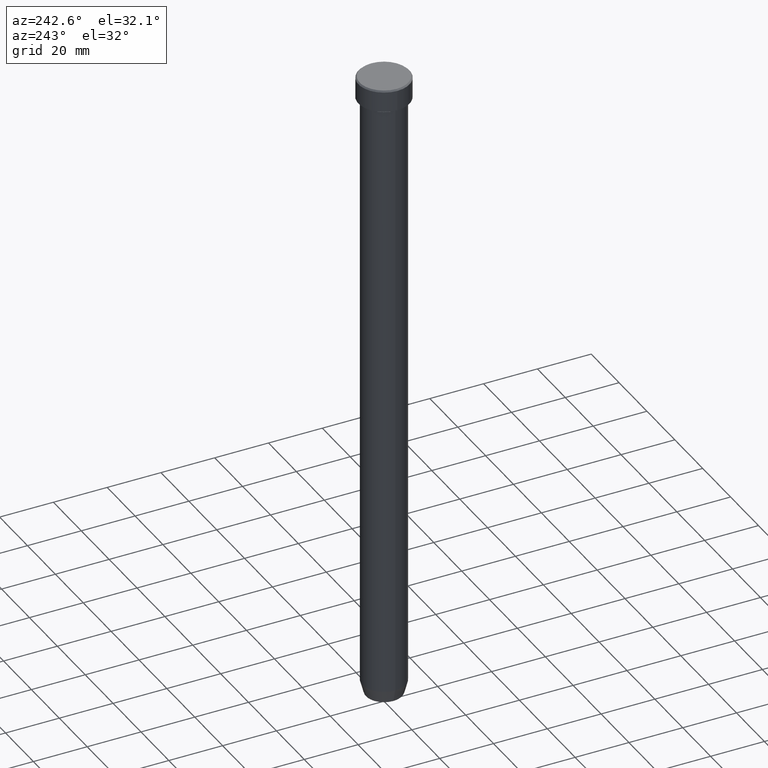
[diagram: clean part render]
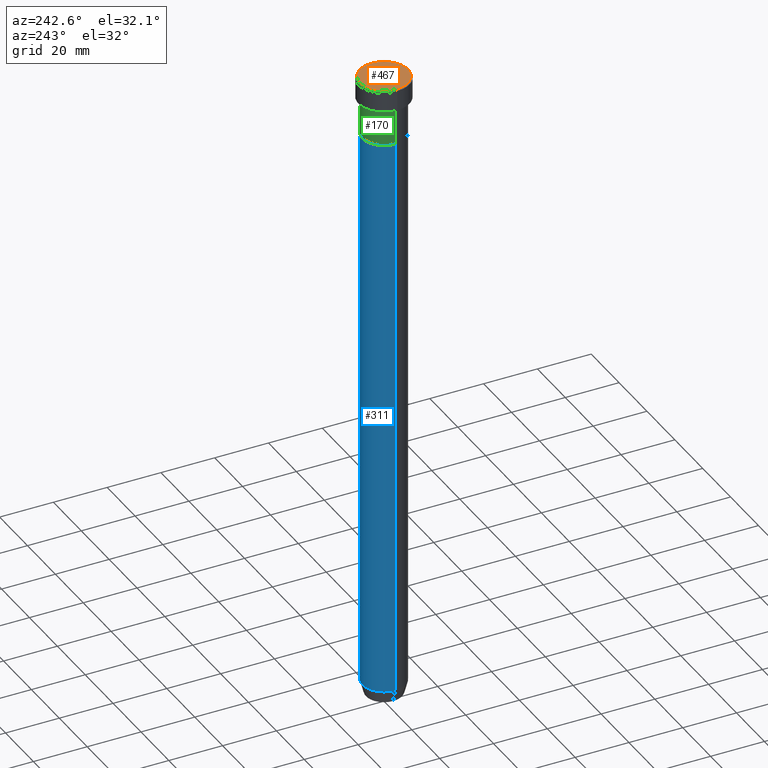
[diagram: same view with three faces highlighted in distinct colors, each labeled with its STEP entity id]
A machine part, auxiliary view with three faces highlighted in distinct colors.
Their STEP definitions:

[orange] entity #467 — the highlighted planar face has unit normal (0, -0, 1).
#13 = CARTESIAN_POINT ( 'NONE',  ( 9.000000000000001776, 1.132798289211301698E-15, 0.000000000000000000 ) ) ;
#88 = ORIENTED_EDGE ( 'NONE', *, *, #274, .T. ) ;
#94 = AXIS2_PLACEMENT_3D ( 'NONE', #352, #538, #265 ) ;
#126 = DIRECTION ( 'NONE',  ( 1.000000000000000000, 0.000000000000000000, 0.000000000000000000 ) ) ;
#190 = VERTEX_POINT ( 'NONE', #13 ) ;
#265 = DIRECTION ( 'NONE',  ( 1.000000000000000000, 0.000000000000000000, 0.000000000000000000 ) ) ;
#268 = DIRECTION ( 'NONE',  ( 1.000000000000000000, 0.000000000000000000, 0.000000000000000000 ) ) ;
#274 = EDGE_CURVE ( 'NONE', #190, #450, #438, .T. ) ;
#291 = AXIS2_PLACEMENT_3D ( 'NONE', #578, #528, #268 ) ;
#293 = EDGE_CURVE ( 'NONE', #450, #190, #553, .T. ) ;
#309 = EDGE_LOOP ( 'NONE', ( #496, #88 ) ) ;
#334 = CARTESIAN_POINT ( 'NONE',  ( -9.000000000000001776, 0.000000000000000000, 0.000000000000000000 ) ) ;
#352 = CARTESIAN_POINT ( 'NONE',  ( 0.000000000000000000, 0.000000000000000000, 0.000000000000000000 ) ) ;
#390 = AXIS2_PLACEMENT_3D ( 'NONE', #487, #526, #126 ) ;
#400 = PLANE ( 'NONE',  #94 ) ;
#438 = CIRCLE ( 'NONE', #390, 9.000000000000001776 ) ;
#450 = VERTEX_POINT ( 'NONE', #334 ) ;
#467 = ADVANCED_FACE ( 'NONE', ( #486 ), #400, .T. ) ;
#486 = FACE_OUTER_BOUND ( 'NONE', #309, .T. ) ;
#487 = CARTESIAN_POINT ( 'NONE',  ( 0.000000000000000000, 0.000000000000000000, 0.000000000000000000 ) ) ;
#496 = ORIENTED_EDGE ( 'NONE', *, *, #293, .T. ) ;
#526 = DIRECTION ( 'NONE',  ( -0.000000000000000000, -0.000000000000000000, 1.000000000000000000 ) ) ;
#528 = DIRECTION ( 'NONE',  ( -0.000000000000000000, -0.000000000000000000, 1.000000000000000000 ) ) ;
#538 = DIRECTION ( 'NONE',  ( 0.000000000000000000, -0.000000000000000000, 1.000000000000000000 ) ) ;
#553 = CIRCLE ( 'NONE', #291, 9.000000000000001776 ) ;
#578 = CARTESIAN_POINT ( 'NONE',  ( 0.000000000000000000, 0.000000000000000000, 0.000000000000000000 ) ) ;

[blue] entity #311 — the highlighted cylindrical surface (edge-blend (fillet) strip) has radius 8 mm, axis along (-0, -0, 1).
#37 = DIRECTION ( 'NONE',  ( -0.000000000000000000, -0.000000000000000000, 1.000000000000000000 ) ) ;
#44 = CARTESIAN_POINT ( 'NONE',  ( 0.000000000000000000, 0.000000000000000000, 0.000000000000000000 ) ) ;
#58 = VERTEX_POINT ( 'NONE', #304 ) ;
#91 = ORIENTED_EDGE ( 'NONE', *, *, #415, .T. ) ;
#98 = CARTESIAN_POINT ( 'NONE',  ( -8.000000000000000000, 9.797174393178825657E-16, -22.00000000000000000 ) ) ;
#106 = DIRECTION ( 'NONE',  ( -0.000000000000000000, -0.000000000000000000, 1.000000000000000000 ) ) ;
#116 = AXIS2_PLACEMENT_3D ( 'NONE', #443, #37, #449 ) ;
#133 = ORIENTED_EDGE ( 'NONE', *, *, #301, .T. ) ;
#147 = CARTESIAN_POINT ( 'NONE',  ( 8.000000000000000000, 0.000000000000000000, 0.000000000000000000 ) ) ;
#167 = DIRECTION ( 'NONE',  ( -0.000000000000000000, -0.000000000000000000, 1.000000000000000000 ) ) ;
#187 = ORIENTED_EDGE ( 'NONE', *, *, #585, .F. ) ;
#191 = AXIS2_PLACEMENT_3D ( 'NONE', #44, #167, #225 ) ;
#201 = CARTESIAN_POINT ( 'NONE',  ( -8.000000000000000000, 9.797174393178825657E-16, 0.000000000000000000 ) ) ;
#216 = FACE_OUTER_BOUND ( 'NONE', #355, .T. ) ;
#225 = DIRECTION ( 'NONE',  ( 1.000000000000000000, 0.000000000000000000, 0.000000000000000000 ) ) ;
#250 = VECTOR ( 'NONE', #471, 1000.000000000000000 ) ;
#252 = LINE ( 'NONE', #201, #250 ) ;
#298 = CIRCLE ( 'NONE', #510, 8.000000000000000000 ) ;
#301 = EDGE_CURVE ( 'NONE', #384, #58, #426, .T. ) ;
#304 = CARTESIAN_POINT ( 'NONE',  ( -8.000000000000000000, 9.797174393178825657E-16, -235.0000000000000000 ) ) ;
#311 = ADVANCED_FACE ( 'NONE', ( #216 ), #580, .T. ) ;
#316 = LINE ( 'NONE', #147, #407 ) ;
#318 = CARTESIAN_POINT ( 'NONE',  ( 0.000000000000000000, 0.000000000000000000, -22.00000000000000000 ) ) ;
#355 = EDGE_LOOP ( 'NONE', ( #133, #91, #369, #187 ) ) ;
#369 = ORIENTED_EDGE ( 'NONE', *, *, #392, .F. ) ;
#384 = VERTEX_POINT ( 'NONE', #525 ) ;
#392 = EDGE_CURVE ( 'NONE', #561, #523, #298, .T. ) ;
#407 = VECTOR ( 'NONE', #106, 1000.000000000000000 ) ;
#415 = EDGE_CURVE ( 'NONE', #58, #523, #252, .T. ) ;
#426 = CIRCLE ( 'NONE', #116, 8.000000000000000000 ) ;
#443 = CARTESIAN_POINT ( 'NONE',  ( 0.000000000000000000, 0.000000000000000000, -235.0000000000000000 ) ) ;
#449 = DIRECTION ( 'NONE',  ( 1.000000000000000000, 0.000000000000000000, 0.000000000000000000 ) ) ;
#471 = DIRECTION ( 'NONE',  ( -0.000000000000000000, -0.000000000000000000, 1.000000000000000000 ) ) ;
#477 = CARTESIAN_POINT ( 'NONE',  ( 8.000000000000000000, 0.000000000000000000, -22.00000000000000000 ) ) ;
#503 = DIRECTION ( 'NONE',  ( -0.000000000000000000, -0.000000000000000000, 1.000000000000000000 ) ) ;
#510 = AXIS2_PLACEMENT_3D ( 'NONE', #318, #503, #598 ) ;
#523 = VERTEX_POINT ( 'NONE', #98 ) ;
#525 = CARTESIAN_POINT ( 'NONE',  ( 8.000000000000000000, 0.000000000000000000, -235.0000000000000000 ) ) ;
#561 = VERTEX_POINT ( 'NONE', #477 ) ;
#580 = CYLINDRICAL_SURFACE ( 'NONE', #191, 8.000000000000000000 ) ;
#585 = EDGE_CURVE ( 'NONE', #384, #561, #316, .T. ) ;
#598 = DIRECTION ( 'NONE',  ( 1.000000000000000000, 0.000000000000000000, 0.000000000000000000 ) ) ;

[green] entity #170 — the highlighted cylindrical surface (edge-blend (fillet) strip) has radius 8 mm, axis along (-0, -0, 1).
#10 = CYLINDRICAL_SURFACE ( 'NONE', #85, 8.000000000000000000 ) ;
#15 = DIRECTION ( 'NONE',  ( -0.000000000000000000, -0.000000000000000000, 1.000000000000000000 ) ) ;
#35 = DIRECTION ( 'NONE',  ( 1.000000000000000000, 0.000000000000000000, 0.000000000000000000 ) ) ;
#72 = CARTESIAN_POINT ( 'NONE',  ( 8.000000000000000000, 0.000000000000000000, -22.00000000000000000 ) ) ;
#85 = AXIS2_PLACEMENT_3D ( 'NONE', #198, #15, #435 ) ;
#92 = DIRECTION ( 'NONE',  ( -0.000000000000000000, -0.000000000000000000, 1.000000000000000000 ) ) ;
#103 = AXIS2_PLACEMENT_3D ( 'NONE', #589, #586, #171 ) ;
#117 = AXIS2_PLACEMENT_3D ( 'NONE', #577, #92, #35 ) ;
#124 = VECTOR ( 'NONE', #332, 1000.000000000000000 ) ;
#127 = VERTEX_POINT ( 'NONE', #72 ) ;
#170 = ADVANCED_FACE ( 'NONE', ( #431 ), #10, .T. ) ;
#171 = DIRECTION ( 'NONE',  ( 1.000000000000000000, 0.000000000000000000, 0.000000000000000000 ) ) ;
#184 = ORIENTED_EDGE ( 'NONE', *, *, #456, .T. ) ;
#193 = EDGE_CURVE ( 'NONE', #127, #362, #196, .T. ) ;
#196 = LINE ( 'NONE', #468, #124 ) ;
#198 = CARTESIAN_POINT ( 'NONE',  ( 0.000000000000000000, 0.000000000000000000, 0.000000000000000000 ) ) ;
#251 = LINE ( 'NONE', #259, #266 ) ;
#259 = CARTESIAN_POINT ( 'NONE',  ( -8.000000000000000000, 9.797174393178825657E-16, 0.000000000000000000 ) ) ;
#266 = VECTOR ( 'NONE', #382, 1000.000000000000000 ) ;
#278 = CARTESIAN_POINT ( 'NONE',  ( -8.000000000000000000, 9.797174393178825657E-16, -9.000000000000001776 ) ) ;
#284 = CIRCLE ( 'NONE', #117, 8.000000000000000000 ) ;
#286 = CARTESIAN_POINT ( 'NONE',  ( -8.000000000000000000, 9.797174393178825657E-16, -22.00000000000000000 ) ) ;
#290 = CARTESIAN_POINT ( 'NONE',  ( 8.000000000000000000, 0.000000000000000000, -9.000000000000001776 ) ) ;
#319 = EDGE_CURVE ( 'NONE', #495, #485, #251, .T. ) ;
#332 = DIRECTION ( 'NONE',  ( -0.000000000000000000, -0.000000000000000000, 1.000000000000000000 ) ) ;
#348 = EDGE_CURVE ( 'NONE', #362, #485, #360, .T. ) ;
#360 = CIRCLE ( 'NONE', #103, 8.000000000000000000 ) ;
#362 = VERTEX_POINT ( 'NONE', #290 ) ;
#382 = DIRECTION ( 'NONE',  ( -0.000000000000000000, -0.000000000000000000, 1.000000000000000000 ) ) ;
#418 = ORIENTED_EDGE ( 'NONE', *, *, #319, .T. ) ;
#431 = FACE_OUTER_BOUND ( 'NONE', #493, .T. ) ;
#435 = DIRECTION ( 'NONE',  ( 1.000000000000000000, 0.000000000000000000, 0.000000000000000000 ) ) ;
#456 = EDGE_CURVE ( 'NONE', #127, #495, #284, .T. ) ;
#468 = CARTESIAN_POINT ( 'NONE',  ( 8.000000000000000000, 0.000000000000000000, 0.000000000000000000 ) ) ;
#485 = VERTEX_POINT ( 'NONE', #278 ) ;
#493 = EDGE_LOOP ( 'NONE', ( #184, #418, #542, #596 ) ) ;
#495 = VERTEX_POINT ( 'NONE', #286 ) ;
#542 = ORIENTED_EDGE ( 'NONE', *, *, #348, .F. ) ;
#577 = CARTESIAN_POINT ( 'NONE',  ( 0.000000000000000000, 0.000000000000000000, -22.00000000000000000 ) ) ;
#586 = DIRECTION ( 'NONE',  ( -0.000000000000000000, -0.000000000000000000, 1.000000000000000000 ) ) ;
#589 = CARTESIAN_POINT ( 'NONE',  ( 0.000000000000000000, 0.000000000000000000, -9.000000000000001776 ) ) ;
#596 = ORIENTED_EDGE ( 'NONE', *, *, #193, .F. ) ;